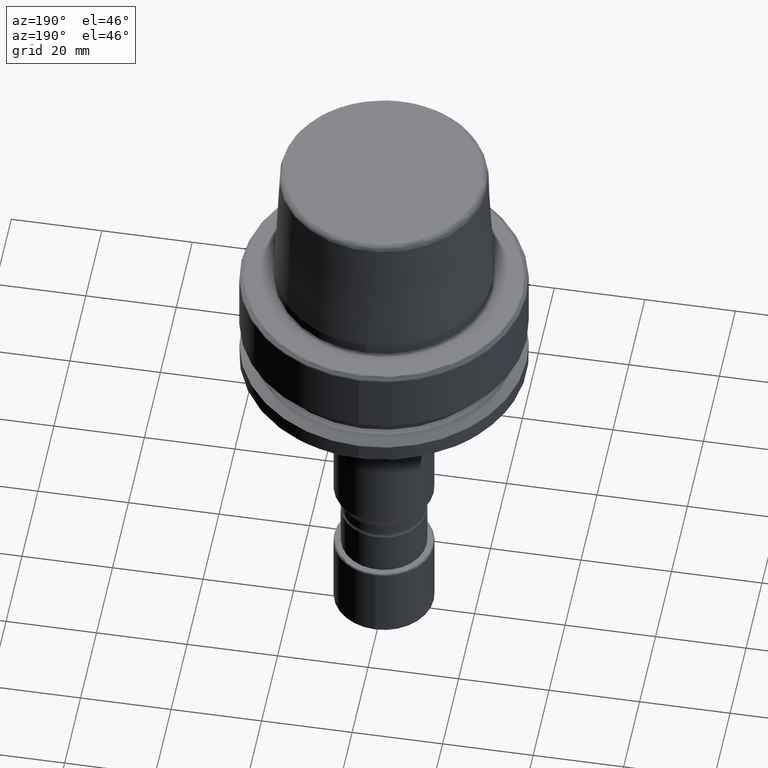
[diagram: clean part render]
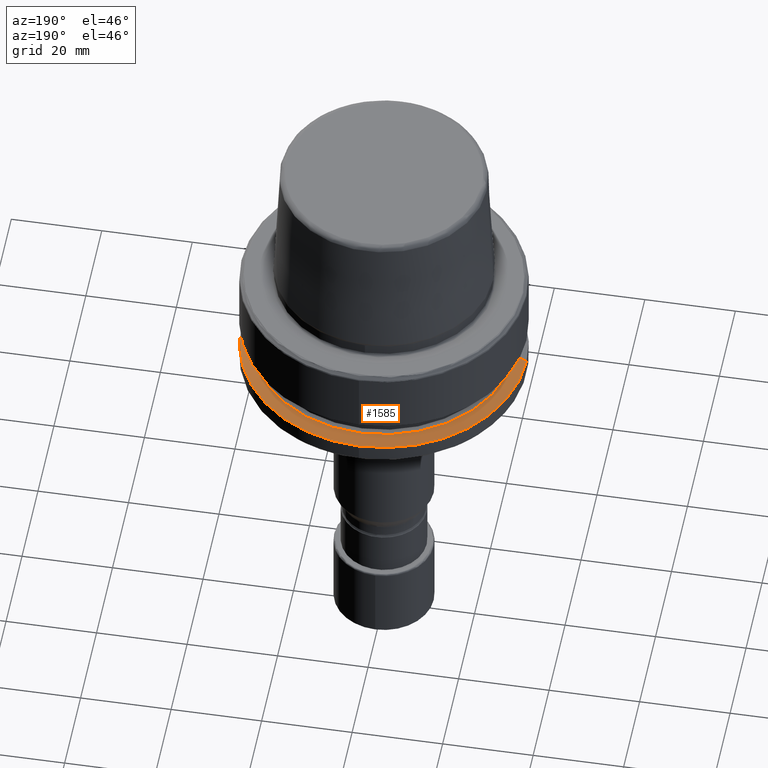
[diagram: same view with one face highlighted and labeled with its STEP entity id]
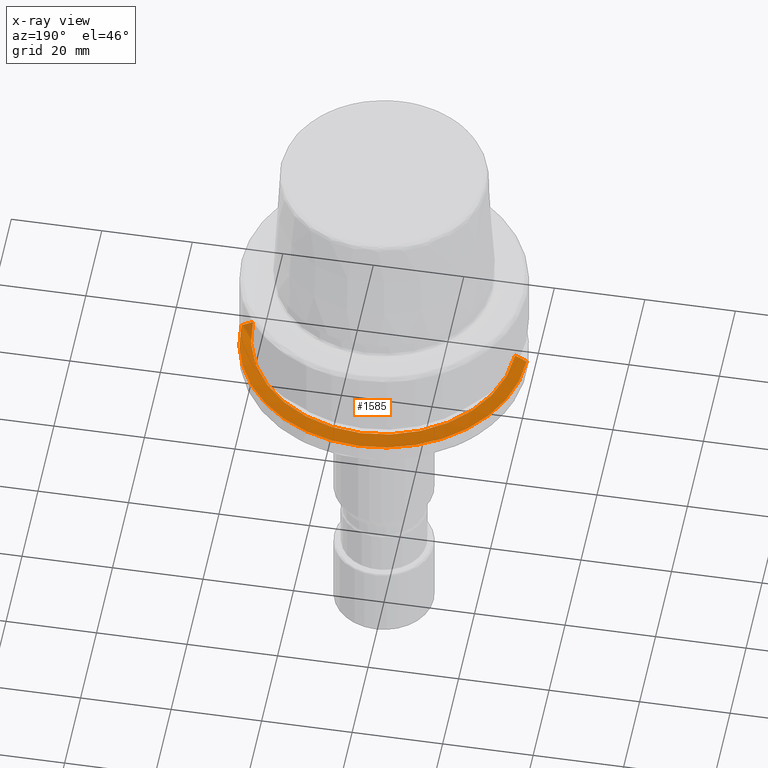
[diagram: x-ray of the same camera — body ghosted, the highlighted face saturated]
A machine part, auxiliary view. The second image highlights one B-rep face of the part: STEP entity #1585.
The next image is the same camera in x-ray: the body ghosted, the highlighted face saturated — about 2% of this face is hidden behind the body in this view.
In plain terms, the highlighted conical surface has half-angle 60 deg.
Its self-contained STEP definition (entity closure, byte-faithful):
#26 = CARTESIAN_POINT ( 'NONE',  ( 0.0000000000000000000, 0.0000000000000000000, -21.35544551591030100 ) ) ;
#31 = EDGE_LOOP ( 'NONE', ( #2393, #1613, #413, #3195, #874 ) ) ;
#67 = VERTEX_POINT ( 'NONE', #602 ) ;
#115 = VERTEX_POINT ( 'NONE', #2677 ) ;
#324 = DIRECTION ( 'NONE',  ( 1.000000000000000000, 0.0000000000000000000, 0.0000000000000000000 ) ) ;
#393 = CIRCLE ( 'NONE', #2925, 31.49999999736794700 ) ;
#413 = ORIENTED_EDGE ( 'NONE', *, *, #493, .T. ) ;
#440 = CARTESIAN_POINT ( 'NONE',  ( 0.0000000000000000000, 0.0000000000000000000, -19.90000000000000200 ) ) ;
#454 = AXIS2_PLACEMENT_3D ( 'NONE', #440, #2279, #712 ) ;
#493 = EDGE_CURVE ( 'NONE', #67, #115, #3279, .T. ) ;
#540 = AXIS2_PLACEMENT_3D ( 'NONE', #26, #1939, #324 ) ;
#602 = CARTESIAN_POINT ( 'NONE',  ( 31.49999999736794700, 3.857637416991828600E-015, -21.35544551591030100 ) ) ;
#712 = DIRECTION ( 'NONE',  ( 1.000000000000000000, 0.0000000000000000000, 0.0000000000000000000 ) ) ;
#874 = ORIENTED_EDGE ( 'NONE', *, *, #2255, .F. ) ;
#880 = EDGE_CURVE ( 'NONE', #2129, #1640, #1887, .T. ) ;
#1192 = CARTESIAN_POINT ( 'NONE',  ( -31.49999999736794700, 0.0000000000000000000, -21.35544551591030100 ) ) ;
#1343 = VECTOR ( 'NONE', #2714, 1000.000000000000100 ) ;
#1439 = VECTOR ( 'NONE', #3213, 1000.000000000000100 ) ;
#1533 = CARTESIAN_POINT ( 'NONE',  ( 0.0000000000000000000, 0.0000000000000000000, -21.35544551591030100 ) ) ;
#1585 = ADVANCED_FACE ( 'NONE', ( #2205 ), #2680, .T. ) ;
#1613 = ORIENTED_EDGE ( 'NONE', *, *, #2292, .T. ) ;
#1628 = CARTESIAN_POINT ( 'NONE',  ( 0.0000000000000000000, 0.0000000000000000000, -21.35544551591030100 ) ) ;
#1640 = VERTEX_POINT ( 'NONE', #3266 ) ;
#1745 = CARTESIAN_POINT ( 'NONE',  ( -31.49999999736794700, 0.0000000000000000000, -21.35544551591030100 ) ) ;
#1868 = AXIS2_PLACEMENT_3D ( 'NONE', #1533, #2999, #2299 ) ;
#1886 = DIRECTION ( 'NONE',  ( 1.000000000000000000, 0.0000000000000000000, 0.0000000000000000000 ) ) ;
#1887 = CIRCLE ( 'NONE', #454, 28.97909441616301200 ) ;
#1892 = LINE ( 'NONE', #1745, #1343 ) ;
#1938 = EDGE_CURVE ( 'NONE', #115, #2212, #393, .T. ) ;
#1939 = DIRECTION ( 'NONE',  ( -0.0000000000000000000, -0.0000000000000000000, 1.000000000000000000 ) ) ;
#2015 = CARTESIAN_POINT ( 'NONE',  ( 31.49999999736794700, 3.857637416991828600E-015, -21.35544551591030100 ) ) ;
#2129 = VERTEX_POINT ( 'NONE', #3343 ) ;
#2205 = FACE_OUTER_BOUND ( 'NONE', #31, .T. ) ;
#2209 = LINE ( 'NONE', #2015, #1439 ) ;
#2212 = VERTEX_POINT ( 'NONE', #1192 ) ;
#2255 = EDGE_CURVE ( 'NONE', #1640, #2212, #1892, .T. ) ;
#2279 = DIRECTION ( 'NONE',  ( -0.0000000000000000000, -0.0000000000000000000, 1.000000000000000000 ) ) ;
#2292 = EDGE_CURVE ( 'NONE', #2129, #67, #2209, .T. ) ;
#2299 = DIRECTION ( 'NONE',  ( -1.000000000000000000, 0.0000000000000000000, 0.0000000000000000000 ) ) ;
#2393 = ORIENTED_EDGE ( 'NONE', *, *, #880, .F. ) ;
#2677 = CARTESIAN_POINT ( 'NONE',  ( 3.857637417152996000E-015, 31.49999999736794700, -21.35544551591030100 ) ) ;
#2680 = CONICAL_SURFACE ( 'NONE', #1868, 31.49999999736794700, 1.047197551196597400 ) ;
#2714 = DIRECTION ( 'NONE',  ( -0.8660254037844383700, 0.0000000000000000000, -0.5000000000000003300 ) ) ;
#2925 = AXIS2_PLACEMENT_3D ( 'NONE', #1628, #3331, #1886 ) ;
#2999 = DIRECTION ( 'NONE',  ( 0.0000000000000000000, 0.0000000000000000000, -1.000000000000000000 ) ) ;
#3195 = ORIENTED_EDGE ( 'NONE', *, *, #1938, .T. ) ;
#3213 = DIRECTION ( 'NONE',  ( 0.8660254037844383700, 1.060575238724906500E-016, -0.5000000000000003300 ) ) ;
#3266 = CARTESIAN_POINT ( 'NONE',  ( -28.97909441616301200, 0.0000000000000000000, -19.90000000000000200 ) ) ;
#3279 = CIRCLE ( 'NONE', #540, 31.49999999736794700 ) ;
#3331 = DIRECTION ( 'NONE',  ( -0.0000000000000000000, -0.0000000000000000000, 1.000000000000000000 ) ) ;
#3343 = CARTESIAN_POINT ( 'NONE',  ( 28.97909441616301200, 3.703276469443062200E-015, -19.90000000000000200 ) ) ;